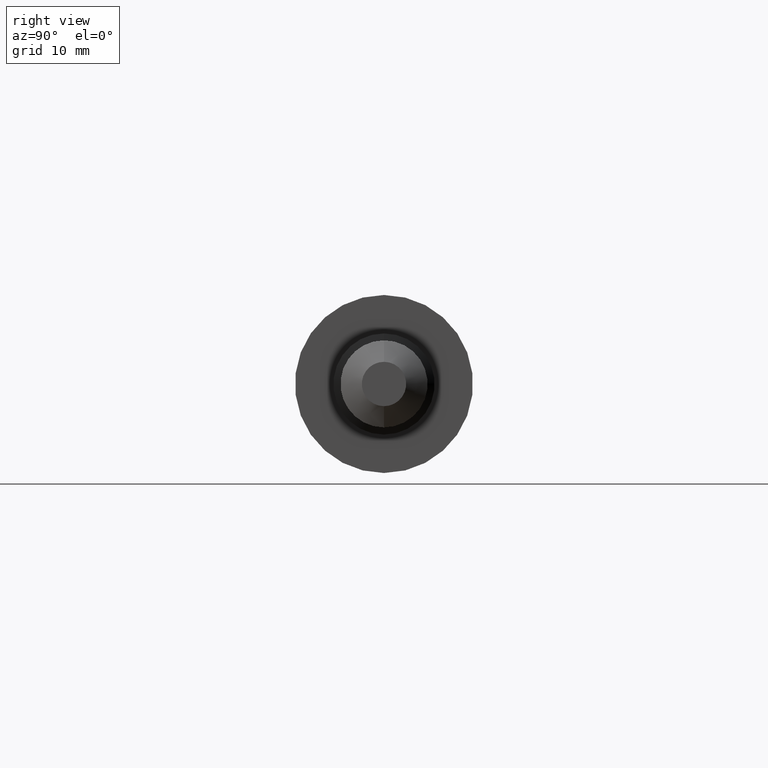
[diagram: clean part render]
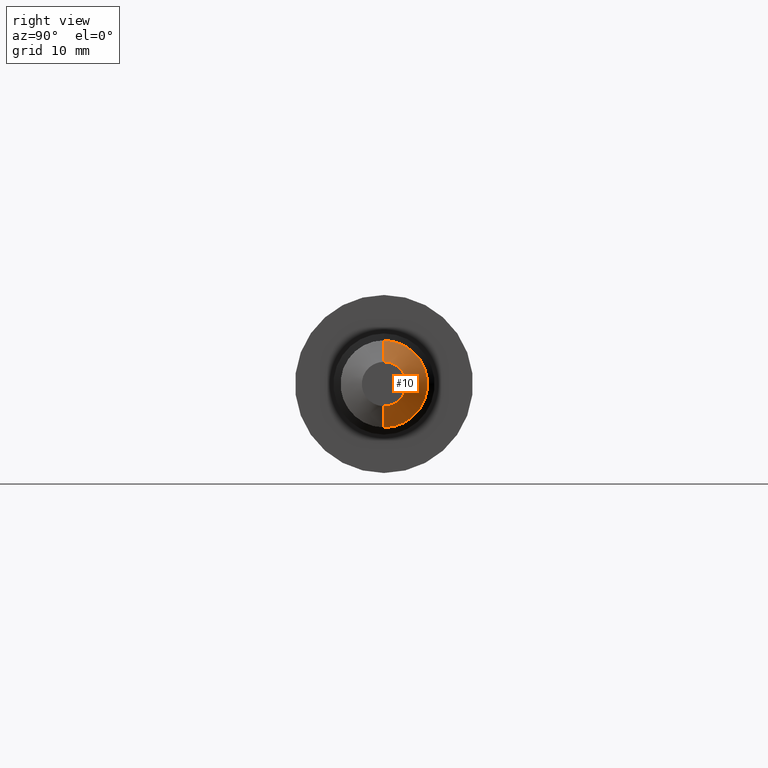
[diagram: same view with one face highlighted and labeled with its STEP entity id]
A machine part, right view. The second image highlights one B-rep face of the part: STEP entity #10.
In plain terms, the highlighted conical surface has half-angle 60 deg.
Its self-contained STEP definition (entity closure, byte-faithful):
#6 = LINE ( 'NONE', #479, #357 ) ;
#7 = CIRCLE ( 'NONE', #193, 0.1169166975080224158 ) ;
#10 = ADVANCED_FACE ( 'NONE', ( #262 ), #27, .T. ) ;
#27 = CONICAL_SURFACE ( 'NONE', #309, 0.1169166975080224158, 1.047197551196600074 ) ;
#29 = CARTESIAN_POINT ( 'NONE',  ( 3.555000000000000160, 2.810564404043175550E-17, -0.2295000000000000095 ) ) ;
#55 = EDGE_CURVE ( 'NONE', #137, #385, #7, .T. ) ;
#89 = VERTEX_POINT ( 'NONE', #222 ) ;
#93 = CARTESIAN_POINT ( 'NONE',  ( 3.555000000000000160, 0.0000000000000000000, 0.0000000000000000000 ) ) ;
#99 = DIRECTION ( 'NONE',  ( 0.0000000000000000000, 0.0000000000000000000, 1.000000000000000000 ) ) ;
#127 = DIRECTION ( 'NONE',  ( -1.000000000000000000, -0.0000000000000000000, -0.0000000000000000000 ) ) ;
#137 = VERTEX_POINT ( 'NONE', #440 ) ;
#146 = DIRECTION ( 'NONE',  ( -0.4999999999999979461, 1.060575238724908024E-16, -0.8660254037844397068 ) ) ;
#165 = CIRCLE ( 'NONE', #445, 0.2295000000000000095 ) ;
#177 = ORIENTED_EDGE ( 'NONE', *, *, #349, .F. ) ;
#182 = CARTESIAN_POINT ( 'NONE',  ( 3.620000000000000107, 0.0000000000000000000, 0.0000000000000000000 ) ) ;
#193 = AXIS2_PLACEMENT_3D ( 'NONE', #508, #199, #418 ) ;
#196 = EDGE_CURVE ( 'NONE', #385, #272, #6, .T. ) ;
#199 = DIRECTION ( 'NONE',  ( -1.000000000000000000, -0.0000000000000000000, -0.0000000000000000000 ) ) ;
#204 = DIRECTION ( 'NONE',  ( -1.000000000000000000, -0.0000000000000000000, -0.0000000000000000000 ) ) ;
#222 = CARTESIAN_POINT ( 'NONE',  ( 3.555000000000000160, 0.0000000000000000000, 0.2295000000000000095 ) ) ;
#262 = FACE_OUTER_BOUND ( 'NONE', #424, .T. ) ;
#268 = ORIENTED_EDGE ( 'NONE', *, *, #55, .T. ) ;
#272 = VERTEX_POINT ( 'NONE', #29 ) ;
#286 = CARTESIAN_POINT ( 'NONE',  ( 3.620000000000000107, 2.121190498871982777E-17, -0.1169166975080224158 ) ) ;
#300 = CARTESIAN_POINT ( 'NONE',  ( 3.620000000000000107, 0.0000000000000000000, 0.1169166975080224158 ) ) ;
#309 = AXIS2_PLACEMENT_3D ( 'NONE', #182, #127, #99 ) ;
#315 = DIRECTION ( 'NONE',  ( -0.4999999999999979461, 0.0000000000000000000, 0.8660254037844397068 ) ) ;
#349 = EDGE_CURVE ( 'NONE', #89, #272, #165, .T. ) ;
#357 = VECTOR ( 'NONE', #146, 39.37007874015748854 ) ;
#376 = EDGE_CURVE ( 'NONE', #137, #89, #425, .T. ) ;
#385 = VERTEX_POINT ( 'NONE', #286 ) ;
#394 = ORIENTED_EDGE ( 'NONE', *, *, #196, .T. ) ;
#398 = DIRECTION ( 'NONE',  ( 0.0000000000000000000, 0.0000000000000000000, 1.000000000000000000 ) ) ;
#418 = DIRECTION ( 'NONE',  ( 0.0000000000000000000, 0.0000000000000000000, 1.000000000000000000 ) ) ;
#424 = EDGE_LOOP ( 'NONE', ( #268, #394, #177, #446 ) ) ;
#425 = LINE ( 'NONE', #300, #451 ) ;
#440 = CARTESIAN_POINT ( 'NONE',  ( 3.620000000000000107, 0.0000000000000000000, 0.1169166975080224158 ) ) ;
#445 = AXIS2_PLACEMENT_3D ( 'NONE', #93, #204, #398 ) ;
#446 = ORIENTED_EDGE ( 'NONE', *, *, #376, .F. ) ;
#451 = VECTOR ( 'NONE', #315, 39.37007874015748854 ) ;
#479 = CARTESIAN_POINT ( 'NONE',  ( 3.620000000000000107, 1.431816593700790003E-17, -0.1169166975080224158 ) ) ;
#508 = CARTESIAN_POINT ( 'NONE',  ( 3.620000000000000107, 0.0000000000000000000, 0.0000000000000000000 ) ) ;